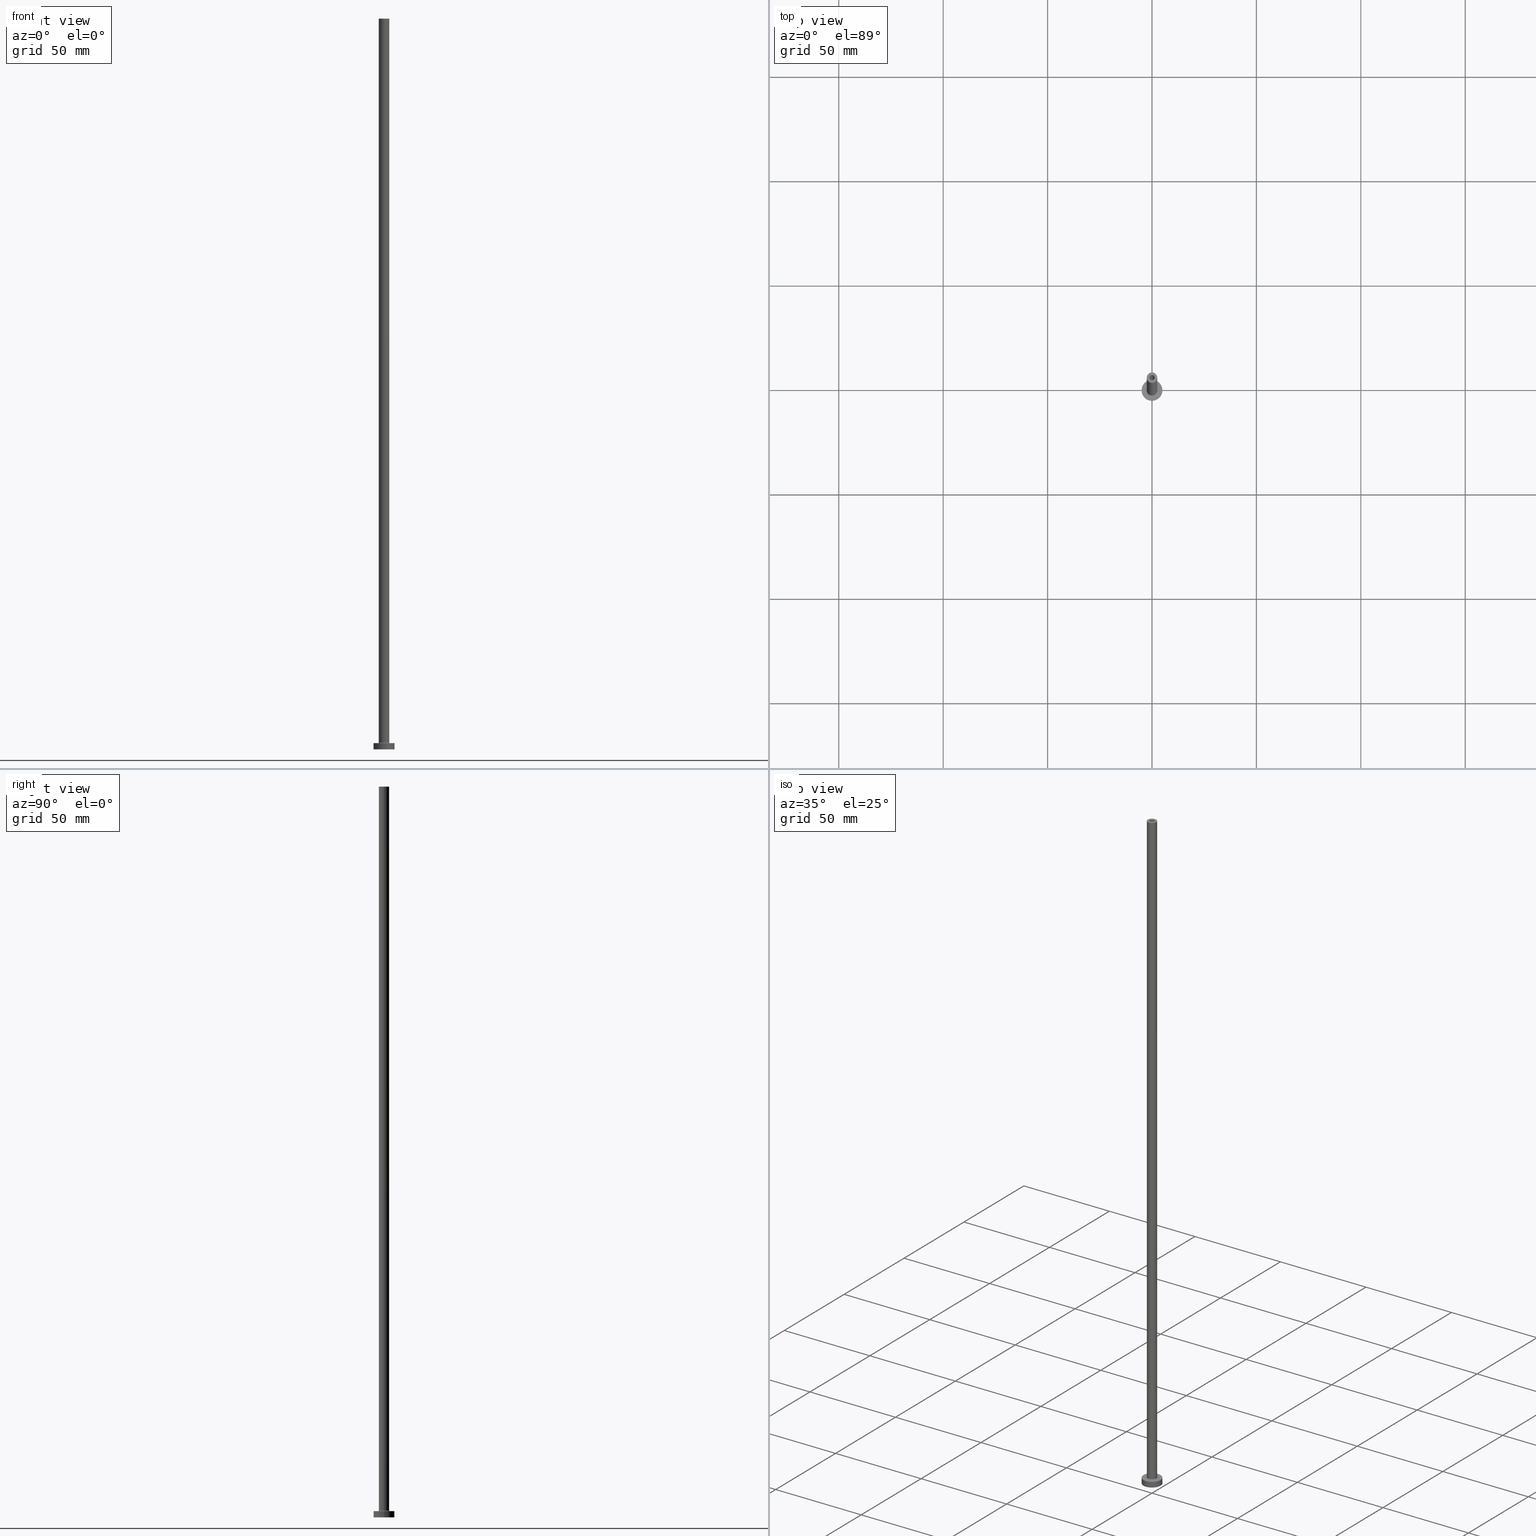
[diagram: canonical four-view strip — front | top / right | iso, engineering-drawing reading convention]
A machine part, canonical four-view strip (front | top / right | iso — engineering-drawing reading convention). The complete STEP part file that produces these views, byte-faithful:
ISO-10303-21;
HEADER;
FILE_DESCRIPTION (( 'STEP AP203' ),
    '1' );
FILE_NAME ('4200.STEP',
    '2023-02-13T18:04:15',
    ( '' ),
    ( '' ),
    'SwSTEP 2.0',
    'SolidWorks 2019',
    '' );
FILE_SCHEMA (( 'CONFIG_CONTROL_DESIGN' ));
ENDSEC;

DATA;
#1 = DIRECTION ( 'NONE',  ( 1.000000000000000000, 0.000000000000000000, 0.000000000000000000 ) ) ;
#2 = CYLINDRICAL_SURFACE ( 'NONE', #210, 1.250000000000000000 ) ;
#3 = LINE ( 'NONE', #32, #165 ) ;
#4 = CARTESIAN_POINT ( 'NONE',  ( 0.000000000000000000, 0.000000000000000000, 3.000000000000000000 ) ) ;
#5 = DIRECTION ( 'NONE',  ( 1.224646799147353207E-16, 1.000000000000000000, -0.000000000000000000 ) ) ;
#6 = AXIS2_PLACEMENT_3D ( 'NONE', #428, #432, #65 ) ;
#7 = CARTESIAN_POINT ( 'NONE',  ( 0.000000000000000000, 0.000000000000000000, 3.000000000000000000 ) ) ;
#8 = EDGE_LOOP ( 'NONE', ( #381, #57, #388, #373 ) ) ;
#9 = DIRECTION ( 'NONE',  ( 1.000000000000000000, 0.000000000000000000, 0.000000000000000000 ) ) ;
#10 = ORIENTED_EDGE ( 'NONE', *, *, #284, .F. ) ;
#11 = VECTOR ( 'NONE', #61, 1000.000000000000000 ) ;
#12 = APPROVAL_DATE_TIME ( #186, #104 ) ;
#13 = FACE_OUTER_BOUND ( 'NONE', #300, .T. ) ;
#14 = ORIENTED_EDGE ( 'NONE', *, *, #297, .F. ) ;
#15 = DIRECTION ( 'NONE',  ( 0.000000000000000000, 0.000000000000000000, 1.000000000000000000 ) ) ;
#16 = AXIS2_PLACEMENT_3D ( 'NONE', #207, #60, #168 ) ;
#17 = ORGANIZATION ( 'NEUR�EN�', 'NEUR�EN�', '' ) ;
#18 = VERTEX_POINT ( 'NONE', #311 ) ;
#19 = CALENDAR_DATE ( 2023, 13, 2 ) ;
#20 = DIRECTION ( 'NONE',  ( 0.000000000000000000, 0.000000000000000000, 1.000000000000000000 ) ) ;
#21 = VERTEX_POINT ( 'NONE', #353 ) ;
#22 = DATE_TIME_ROLE ( 'creation_date' ) ;
#23 = ADVANCED_FACE ( 'NONE', ( #164 ), #27, .F. ) ;
#24 = LINE ( 'NONE', #30, #192 ) ;
#25 = CARTESIAN_POINT ( 'NONE',  ( 0.000000000000000000, 0.000000000000000000, 3.300000000000025135 ) ) ;
#26 = AXIS2_PLACEMENT_3D ( 'NONE', #107, #326, #38 ) ;
#27 = CYLINDRICAL_SURFACE ( 'NONE', #173, 1.399999999999999911 ) ;
#28 = CARTESIAN_POINT ( 'NONE',  ( -5.000000000000000000, 0.000000000000000000, 3.000000000000000000 ) ) ;
#29 = EDGE_CURVE ( 'NONE', #18, #157, #248, .T. ) ;
#30 = CARTESIAN_POINT ( 'NONE',  ( -1.399999999999999911, 0.000000000000000000, 318.9597979746445731 ) ) ;
#31 = AXIS2_PLACEMENT_3D ( 'NONE', #399, #431, #328 ) ;
#32 = CARTESIAN_POINT ( 'NONE',  ( -1.250000000000000000, 0.000000000000000000, 350.0000000000000000 ) ) ;
#33 = DIRECTION ( 'NONE',  ( -1.000000000000000000, 0.000000000000000000, 0.000000000000000000 ) ) ;
#34 = CC_DESIGN_PERSON_AND_ORGANIZATION_ASSIGNMENT ( #59, #235, ( #54 ) ) ;
#35 = APPLICATION_CONTEXT ( 'configuration controlled 3d designs of mechanical parts and assemblies' ) ;
#36 = DIRECTION ( 'NONE',  ( -1.000000000000000000, 0.000000000000000000, 0.000000000000000000 ) ) ;
#37 = VECTOR ( 'NONE', #365, 1000.000000000000000 ) ;
#38 = DIRECTION ( 'NONE',  ( 1.000000000000000000, 0.000000000000000000, 0.000000000000000000 ) ) ;
#39 = EDGE_LOOP ( 'NONE', ( #53, #271, #438, #386 ) ) ;
#40 = CARTESIAN_POINT ( 'NONE',  ( 0.000000000000000000, 0.000000000000000000, 314.9999999999999432 ) ) ;
#41 = CC_DESIGN_PERSON_AND_ORGANIZATION_ASSIGNMENT ( #276, #389, ( #288 ) ) ;
#42 = CARTESIAN_POINT ( 'NONE',  ( 0.000000000000000000, 0.000000000000000000, 0.000000000000000000 ) ) ;
#43 = ORIENTED_EDGE ( 'NONE', *, *, #199, .F. ) ;
#44 = CIRCLE ( 'NONE', #66, 2.799999999999999822 ) ;
#45 = ORIENTED_EDGE ( 'NONE', *, *, #415, .T. ) ;
#46 = CARTESIAN_POINT ( 'NONE',  ( 0.000000000000000000, 0.000000000000000000, 350.0000000000000000 ) ) ;
#47 = ORIENTED_EDGE ( 'NONE', *, *, #324, .T. ) ;
#48 = COORDINATED_UNIVERSAL_TIME_OFFSET ( 1, 0, .AHEAD. ) ;
#49 = CARTESIAN_POINT ( 'NONE',  ( 5.000000000000000000, 6.123233995736766282E-16, 3.000000000000000000 ) ) ;
#50 = VERTEX_POINT ( 'NONE', #460 ) ;
#51 = DIRECTION ( 'NONE',  ( -1.000000000000000000, 0.000000000000000000, 0.000000000000000000 ) ) ;
#52 = CIRCLE ( 'NONE', #422, 2.500000000000000000 ) ;
#53 = ORIENTED_EDGE ( 'NONE', *, *, #284, .T. ) ;
#54 = PRODUCT ( '4200', '4200', '', ( #238 ) ) ;
#55 = EDGE_CURVE ( 'NONE', #159, #229, #355, .T. ) ;
#56 = CALENDAR_DATE ( 2023, 13, 2 ) ;
#57 = ORIENTED_EDGE ( 'NONE', *, *, #55, .T. ) ;
#58 = EDGE_LOOP ( 'NONE', ( #117, #197 ) ) ;
#59 = PERSON_AND_ORGANIZATION ( #211, #17 ) ;
#60 = DIRECTION ( 'NONE',  ( -0.000000000000000000, -0.000000000000000000, -1.000000000000000000 ) ) ;
#61 = DIRECTION ( 'NONE',  ( -0.000000000000000000, -0.000000000000000000, -1.000000000000000000 ) ) ;
#62 = ADVANCED_FACE ( 'NONE', ( #134 ), #205, .F. ) ;
#63 = EDGE_LOOP ( 'NONE', ( #162, #281, #85, #443 ) ) ;
#64 = DIRECTION ( 'NONE',  ( 0.000000000000000000, 0.000000000000000000, -1.000000000000000000 ) ) ;
#65 = DIRECTION ( 'NONE',  ( 1.000000000000000000, 0.000000000000000000, 0.000000000000000000 ) ) ;
#66 = AXIS2_PLACEMENT_3D ( 'NONE', #411, #335, #223 ) ;
#67 = LOCAL_TIME ( 19, 4, 15.00000000000000000, #384 ) ;
#68 = EDGE_CURVE ( 'NONE', #408, #456, #178, .T. ) ;
#69 = DIRECTION ( 'NONE',  ( -0.000000000000000000, -0.000000000000000000, -1.000000000000000000 ) ) ;
#70 = VECTOR ( 'NONE', #241, 1000.000000000000000 ) ;
#71 = DIRECTION ( 'NONE',  ( 0.000000000000000000, 0.000000000000000000, 1.000000000000000000 ) ) ;
#72 = CIRCLE ( 'NONE', #458, 1.399999999999999911 ) ;
#73 = CC_DESIGN_APPROVAL ( #104, ( #140 ) ) ;
#74 = DIRECTION ( 'NONE',  ( -1.000000000000000000, 0.000000000000000000, 0.000000000000000000 ) ) ;
#75 = CC_DESIGN_PERSON_AND_ORGANIZATION_ASSIGNMENT ( #231, #163, ( #292 ) ) ;
#76 =( LENGTH_UNIT ( ) NAMED_UNIT ( * ) SI_UNIT ( .MILLI., .METRE. ) );
#77 = CARTESIAN_POINT ( 'NONE',  ( -2.500000000000000000, 0.000000000000000000, 350.0000000000000000 ) ) ;
#78 = ORIENTED_EDGE ( 'NONE', *, *, #444, .F. ) ;
#79 = APPROVAL_ROLE ( '' ) ;
#80 = AXIS2_PLACEMENT_3D ( 'NONE', #290, #5, #255 ) ;
#81 = FACE_BOUND ( 'NONE', #393, .T. ) ;
#82 = VERTEX_POINT ( 'NONE', #167 ) ;
#83 = PERSON_AND_ORGANIZATION ( #211, #17 ) ;
#84 = CARTESIAN_POINT ( 'NONE',  ( -2.799999999999999822, 3.429011037612589276E-16, 3.000000000000012434 ) ) ;
#85 = ORIENTED_EDGE ( 'NONE', *, *, #142, .T. ) ;
#86 = AXIS2_PLACEMENT_3D ( 'NONE', #320, #286, #166 ) ;
#87 = APPROVAL_DATE_TIME ( #183, #425 ) ;
#88 = DIRECTION ( 'NONE',  ( -0.000000000000000000, -0.000000000000000000, -1.000000000000000000 ) ) ;
#89 = VERTEX_POINT ( 'NONE', #278 ) ;
#90 = PERSON_AND_ORGANIZATION ( #211, #17 ) ;
#91 = VECTOR ( 'NONE', #380, 1000.000000000000000 ) ;
#92 = VERTEX_POINT ( 'NONE', #351 ) ;
#93 = CC_DESIGN_PERSON_AND_ORGANIZATION_ASSIGNMENT ( #410, #370, ( #140 ) ) ;
#94 =( NAMED_UNIT ( * ) SI_UNIT ( $, .STERADIAN. ) SOLID_ANGLE_UNIT ( ) );
#95 = CYLINDRICAL_SURFACE ( 'NONE', #321, 5.000000000000000000 ) ;
#96 = CARTESIAN_POINT ( 'NONE',  ( 0.000000000000000000, 0.000000000000000000, 0.000000000000000000 ) ) ;
#97 = CARTESIAN_POINT ( 'NONE',  ( 0.000000000000000000, 0.000000000000000000, 3.300000000000025135 ) ) ;
#98 = EDGE_CURVE ( 'NONE', #414, #342, #129, .T. ) ;
#99 = LINE ( 'NONE', #203, #11 ) ;
#100 = ORIENTED_EDGE ( 'NONE', *, *, #436, .T. ) ;
#101 = DIRECTION ( 'NONE',  ( 0.000000000000000000, -1.000000000000000000, 0.000000000000000000 ) ) ;
#102 = CLOSED_SHELL ( 'NONE', ( #319, #23, #62, #191, #180, #230, #371, #330, #368, #452, #430, #459, #402, #247 ) ) ;
#103 = DIRECTION ( 'NONE',  ( 0.000000000000000000, 0.000000000000000000, 1.000000000000000000 ) ) ;
#104 = APPROVAL ( #379, 'NEUR�EN�' ) ;
#105 = CARTESIAN_POINT ( 'NONE',  ( 0.000000000000000000, 0.000000000000000000, 3.000000000000000000 ) ) ;
#106 = AXIS2_PLACEMENT_3D ( 'NONE', #440, #181, #116 ) ;
#107 = CARTESIAN_POINT ( 'NONE',  ( 0.000000000000000000, 0.000000000000000000, 3.300000000000025135 ) ) ;
#108 = FACE_OUTER_BOUND ( 'NONE', #39, .T. ) ;
#109 = CARTESIAN_POINT ( 'NONE',  ( 0.000000000000000000, 0.000000000000000000, 350.0000000000000000 ) ) ;
#110 = EDGE_CURVE ( 'NONE', #50, #418, #357, .T. ) ;
#111 = ORIENTED_EDGE ( 'NONE', *, *, #29, .F. ) ;
#112 = DIRECTION ( 'NONE',  ( 1.000000000000000000, 0.000000000000000000, 0.000000000000000000 ) ) ;
#113 = CARTESIAN_POINT ( 'NONE',  ( 1.250000000000000000, 1.530808498934191571E-16, 350.0000000000000000 ) ) ;
#114 = ORIENTED_EDGE ( 'NONE', *, *, #136, .F. ) ;
#115 = EDGE_CURVE ( 'NONE', #18, #21, #259, .T. ) ;
#116 = DIRECTION ( 'NONE',  ( 1.000000000000000000, 0.000000000000000000, 0.000000000000000000 ) ) ;
#117 = ORIENTED_EDGE ( 'NONE', *, *, #362, .F. ) ;
#118 = AXIS2_PLACEMENT_3D ( 'NONE', #260, #88, #51 ) ;
#119 = PLANE ( 'NONE',  #433 ) ;
#120 = APPROVAL_PERSON_ORGANIZATION ( #201, #337, #270 ) ;
#121 = EDGE_LOOP ( 'NONE', ( #10, #441 ) ) ;
#122 = DATE_TIME_ROLE ( 'classification_date' ) ;
#123 = DIRECTION ( 'NONE',  ( 0.000000000000000000, 0.000000000000000000, 1.000000000000000000 ) ) ;
#124 = ORIENTED_EDGE ( 'NONE', *, *, #297, .T. ) ;
#125 = COORDINATED_UNIVERSAL_TIME_OFFSET ( 1, 0, .AHEAD. ) ;
#126 = EDGE_LOOP ( 'NONE', ( #43, #150 ) ) ;
#127 = EDGE_CURVE ( 'NONE', #418, #157, #99, .T. ) ;
#128 = CIRCLE ( 'NONE', #26, 2.500000000000000000 ) ;
#129 = LINE ( 'NONE', #454, #213 ) ;
#130 = APPROVAL_DATE_TIME ( #453, #337 ) ;
#131 = CARTESIAN_POINT ( 'NONE',  ( 0.000000000000000000, 0.000000000000000000, 318.9597979746445731 ) ) ;
#132 = ORIENTED_EDGE ( 'NONE', *, *, #265, .F. ) ;
#133 = ORIENTED_EDGE ( 'NONE', *, *, #98, .F. ) ;
#134 = FACE_OUTER_BOUND ( 'NONE', #295, .T. ) ;
#135 = AXIS2_PLACEMENT_3D ( 'NONE', #40, #172, #216 ) ;
#136 = EDGE_CURVE ( 'NONE', #378, #147, #277, .T. ) ;
#137 = DIRECTION ( 'NONE',  ( 0.000000000000000000, 0.000000000000000000, -1.000000000000000000 ) ) ;
#138 = CARTESIAN_POINT ( 'NONE',  ( 0.000000000000000000, 0.000000000000000000, 0.000000000000000000 ) ) ;
#139 = CIRCLE ( 'NONE', #382, 5.000000000000000000 ) ;
#140 = SECURITY_CLASSIFICATION ( '', '', #301 ) ;
#141 = PLANE ( 'NONE',  #234 ) ;
#142 = EDGE_CURVE ( 'NONE', #147, #456, #360, .T. ) ;
#143 = AXIS2_PLACEMENT_3D ( 'NONE', #394, #103, #392 ) ;
#144 = DIRECTION ( 'NONE',  ( -1.000000000000000000, 0.000000000000000000, 0.000000000000000000 ) ) ;
#145 = ORIENTED_EDGE ( 'NONE', *, *, #349, .T. ) ;
#146 = CARTESIAN_POINT ( 'NONE',  ( 0.000000000000000000, 0.000000000000000000, 350.0000000000000000 ) ) ;
#147 = VERTEX_POINT ( 'NONE', #28 ) ;
#148 = CC_DESIGN_APPROVAL ( #337, ( #288 ) ) ;
#149 = CARTESIAN_POINT ( 'NONE',  ( 0.000000000000000000, 0.000000000000000000, 350.0000000000000000 ) ) ;
#150 = ORIENTED_EDGE ( 'NONE', *, *, #221, .F. ) ;
#151 = PRODUCT_RELATED_PRODUCT_CATEGORY ( 'detail', '', ( #54 ) ) ;
#152 = SHAPE_DEFINITION_REPRESENTATION ( #448, #404 ) ;
#153 = CYLINDRICAL_SURFACE ( 'NONE', #118, 2.500000000000000000 ) ;
#154 = EDGE_LOOP ( 'NONE', ( #285, #111, #267, #218 ) ) ;
#155 = CALENDAR_DATE ( 2023, 13, 2 ) ;
#156 = DIRECTION ( 'NONE',  ( -1.000000000000000000, 0.000000000000000000, 0.000000000000000000 ) ) ;
#157 = VERTEX_POINT ( 'NONE', #246 ) ;
#158 = FACE_OUTER_BOUND ( 'NONE', #405, .T. ) ;
#159 = VERTEX_POINT ( 'NONE', #390 ) ;
#160 = CC_DESIGN_DATE_AND_TIME_ASSIGNMENT ( #196, #22, ( #288 ) ) ;
#161 = DIRECTION ( 'NONE',  ( 1.000000000000000000, 0.000000000000000000, -0.000000000000000000 ) ) ;
#162 = ORIENTED_EDGE ( 'NONE', *, *, #415, .F. ) ;
#163 = PERSON_AND_ORGANIZATION_ROLE ( 'creator' ) ;
#164 = FACE_OUTER_BOUND ( 'NONE', #8, .T. ) ;
#165 = VECTOR ( 'NONE', #426, 1000.000000000000000 ) ;
#166 = DIRECTION ( 'NONE',  ( 1.000000000000000000, 0.000000000000000000, 0.000000000000000000 ) ) ;
#167 = CARTESIAN_POINT ( 'NONE',  ( -1.250000000000000000, 0.000000000000000000, 350.0000000000000000 ) ) ;
#168 = DIRECTION ( 'NONE',  ( 1.000000000000000000, 0.000000000000000000, 0.000000000000000000 ) ) ;
#169 = DIRECTION ( 'NONE',  ( 0.000000000000000000, 0.000000000000000000, -1.000000000000000000 ) ) ;
#170 = AXIS2_PLACEMENT_3D ( 'NONE', #445, #189, #346 ) ;
#171 = EDGE_CURVE ( 'NONE', #21, #420, #316, .T. ) ;
#172 = DIRECTION ( 'NONE',  ( 0.000000000000000000, 0.000000000000000000, 1.000000000000000000 ) ) ;
#173 = AXIS2_PLACEMENT_3D ( 'NONE', #131, #200, #244 ) ;
#174 = CARTESIAN_POINT ( 'NONE',  ( 0.000000000000000000, 0.000000000000000000, 0.000000000000000000 ) ) ;
#175 = DIRECTION ( 'NONE',  ( 1.000000000000000000, 0.000000000000000000, 0.000000000000000000 ) ) ;
#176 = EDGE_CURVE ( 'NONE', #89, #457, #24, .T. ) ;
#177 = CYLINDRICAL_SURFACE ( 'NONE', #31, 2.500000000000000000 ) ;
#178 = CIRCLE ( 'NONE', #439, 5.000000000000000000 ) ;
#179 = CARTESIAN_POINT ( 'NONE',  ( 0.000000000000000000, 0.000000000000000000, 350.0000000000000000 ) ) ;
#180 = ADVANCED_FACE ( 'NONE', ( #424 ), #95, .T. ) ;
#181 = DIRECTION ( 'NONE',  ( 0.000000000000000000, 0.000000000000000000, 1.000000000000000000 ) ) ;
#182 = ORIENTED_EDGE ( 'NONE', *, *, #142, .F. ) ;
#183 = DATE_AND_TIME ( #348, #67 ) ;
#184 = LINE ( 'NONE', #266, #91 ) ;
#185 = ORIENTED_EDGE ( 'NONE', *, *, #258, .T. ) ;
#186 = DATE_AND_TIME ( #19, #409 ) ;
#187 = DIRECTION ( 'NONE',  ( 0.000000000000000000, 0.000000000000000000, 1.000000000000000000 ) ) ;
#188 = ORIENTED_EDGE ( 'NONE', *, *, #324, .F. ) ;
#189 = DIRECTION ( 'NONE',  ( 0.000000000000000000, 0.000000000000000000, 1.000000000000000000 ) ) ;
#190 = ORIENTED_EDGE ( 'NONE', *, *, #419, .T. ) ;
#191 = ADVANCED_FACE ( 'NONE', ( #369 ), #177, .T. ) ;
#192 = VECTOR ( 'NONE', #169, 1000.000000000000000 ) ;
#193 = APPROVAL_PERSON_ORGANIZATION ( #345, #425, #79 ) ;
#194 = CARTESIAN_POINT ( 'NONE',  ( 0.000000000000000000, 0.000000000000000000, 314.9999999999999432 ) ) ;
#195 = EDGE_LOOP ( 'NONE', ( #375, #190 ) ) ;
#196 = DATE_AND_TIME ( #416, #363 ) ;
#197 = ORIENTED_EDGE ( 'NONE', *, *, #68, .F. ) ;
#198 = APPLICATION_PROTOCOL_DEFINITION ( 'international standard', 'config_control_design', 1994, #279 ) ;
#199 = EDGE_CURVE ( 'NONE', #89, #159, #242, .T. ) ;
#200 = DIRECTION ( 'NONE',  ( 0.000000000000000000, 0.000000000000000000, -1.000000000000000000 ) ) ;
#201 = PERSON_AND_ORGANIZATION ( #211, #17 ) ;
#202 = AXIS2_PLACEMENT_3D ( 'NONE', #46, #187, #161 ) ;
#203 = CARTESIAN_POINT ( 'NONE',  ( -2.500000000000000000, 0.000000000000000000, 350.0000000000000000 ) ) ;
#204 = DIRECTION ( 'NONE',  ( 0.000000000000000000, 0.000000000000000000, 1.000000000000000000 ) ) ;
#205 = TOROIDAL_SURFACE ( 'NONE', #253, 2.799999999999999822, 0.2999999999999999889 ) ;
#206 = ORIENTED_EDGE ( 'NONE', *, *, #208, .F. ) ;
#207 = CARTESIAN_POINT ( 'NONE',  ( 0.000000000000000000, 0.000000000000000000, 3.000000000000000000 ) ) ;
#208 = EDGE_CURVE ( 'NONE', #418, #50, #52, .T. ) ;
#209 = DIRECTION ( 'NONE',  ( 0.000000000000000000, 0.000000000000000000, 1.000000000000000000 ) ) ;
#210 = AXIS2_PLACEMENT_3D ( 'NONE', #179, #294, #144 ) ;
#211 = PERSON ( 'NEUR�EN�', 'NEUR�EN�', 'NEUR�EN�', ('NEUR�EN�'), ('NEUR�EN�'), ('NEUR�EN�') ) ;
#212 = FACE_OUTER_BOUND ( 'NONE', #359, .T. ) ;
#213 = VECTOR ( 'NONE', #64, 1000.000000000000000 ) ;
#214 = CARTESIAN_POINT ( 'NONE',  ( 0.000000000000000000, 0.000000000000000000, 314.9999999999999432 ) ) ;
#215 = EDGE_CURVE ( 'NONE', #147, #378, #312, .T. ) ;
#216 = DIRECTION ( 'NONE',  ( 1.000000000000000000, 0.000000000000000000, 0.000000000000000000 ) ) ;
#217 = AXIS2_PLACEMENT_3D ( 'NONE', #105, #254, #400 ) ;
#218 = ORIENTED_EDGE ( 'NONE', *, *, #419, .F. ) ;
#219 = AXIS2_PLACEMENT_3D ( 'NONE', #96, #314, #350 ) ;
#220 = CYLINDRICAL_SURFACE ( 'NONE', #361, 5.000000000000000000 ) ;
#221 = EDGE_CURVE ( 'NONE', #159, #89, #343, .T. ) ;
#222 = VECTOR ( 'NONE', #249, 1000.000000000000000 ) ;
#223 = DIRECTION ( 'NONE',  ( 1.000000000000000000, 0.000000000000000000, 0.000000000000000000 ) ) ;
#224 = ORIENTED_EDGE ( 'NONE', *, *, #444, .T. ) ;
#225 = CIRCLE ( 'NONE', #333, 1.250000000000000000 ) ;
#226 = FACE_OUTER_BOUND ( 'NONE', #303, .T. ) ;
#227 = ORIENTED_EDGE ( 'NONE', *, *, #136, .T. ) ;
#228 = DIRECTION ( 'NONE',  ( 0.000000000000000000, 0.000000000000000000, 1.000000000000000000 ) ) ;
#229 = VERTEX_POINT ( 'NONE', #434 ) ;
#230 = ADVANCED_FACE ( 'NONE', ( #367 ), #220, .T. ) ;
#231 = PERSON_AND_ORGANIZATION ( #211, #17 ) ;
#232 = FACE_OUTER_BOUND ( 'NONE', #126, .T. ) ;
#233 = ORIENTED_EDGE ( 'NONE', *, *, #356, .F. ) ;
#234 = AXIS2_PLACEMENT_3D ( 'NONE', #395, #209, #364 ) ;
#235 = PERSON_AND_ORGANIZATION_ROLE ( 'design_owner' ) ;
#236 = EDGE_LOOP ( 'NONE', ( #14, #132 ) ) ;
#237 = CC_DESIGN_PERSON_AND_ORGANIZATION_ASSIGNMENT ( #83, #376, ( #292 ) ) ;
#238 = MECHANICAL_CONTEXT ( 'NONE', #35, 'mechanical' ) ;
#239 = CARTESIAN_POINT ( 'NONE',  ( 0.000000000000000000, 0.000000000000000000, 3.000000000000000000 ) ) ;
#240 = COORDINATED_UNIVERSAL_TIME_OFFSET ( 1, 0, .AHEAD. ) ;
#241 = DIRECTION ( 'NONE',  ( -0.000000000000000000, -0.000000000000000000, -1.000000000000000000 ) ) ;
#242 = CIRCLE ( 'NONE', #298, 1.399999999999999911 ) ;
#243 = CC_DESIGN_APPROVAL ( #425, ( #292 ) ) ;
#244 = DIRECTION ( 'NONE',  ( -1.000000000000000000, 0.000000000000000000, 0.000000000000000000 ) ) ;
#245 = ORIENTED_EDGE ( 'NONE', *, *, #110, .F. ) ;
#246 = CARTESIAN_POINT ( 'NONE',  ( -2.500000000000000000, 0.000000000000000000, 3.300000000000025135 ) ) ;
#247 = ADVANCED_FACE ( 'NONE', ( #212 ), #2, .F. ) ;
#248 = CIRCLE ( 'NONE', #461, 2.500000000000000000 ) ;
#249 = DIRECTION ( 'NONE',  ( 0.000000000000000000, 0.000000000000000000, -1.000000000000000000 ) ) ;
#250 = LINE ( 'NONE', #398, #37 ) ;
#251 = CIRCLE ( 'NONE', #264, 1.399999999999999911 ) ;
#252 = CARTESIAN_POINT ( 'NONE',  ( 1.250000000000000000, 1.530808498934191571E-16, 314.9999999999999432 ) ) ;
#253 = AXIS2_PLACEMENT_3D ( 'NONE', #97, #204, #317 ) ;
#254 = DIRECTION ( 'NONE',  ( 0.000000000000000000, 0.000000000000000000, 1.000000000000000000 ) ) ;
#255 = DIRECTION ( 'NONE',  ( -1.000000000000000000, 1.224646799147353207E-16, 0.000000000000000000 ) ) ;
#256 = CIRCLE ( 'NONE', #170, 1.250000000000000000 ) ;
#257 = CYLINDRICAL_SURFACE ( 'NONE', #327, 1.399999999999999911 ) ;
#258 = EDGE_CURVE ( 'NONE', #157, #420, #282, .T. ) ;
#259 = CIRCLE ( 'NONE', #387, 0.2999999999999999334 ) ;
#260 = CARTESIAN_POINT ( 'NONE',  ( 0.000000000000000000, 0.000000000000000000, 350.0000000000000000 ) ) ;
#261 = ORIENTED_EDGE ( 'NONE', *, *, #383, .T. ) ;
#262 = FACE_BOUND ( 'NONE', #121, .T. ) ;
#263 = ORIENTED_EDGE ( 'NONE', *, *, #55, .F. ) ;
#264 = AXIS2_PLACEMENT_3D ( 'NONE', #138, #69, #175 ) ;
#265 = EDGE_CURVE ( 'NONE', #229, #457, #72, .T. ) ;
#266 = CARTESIAN_POINT ( 'NONE',  ( 5.000000000000000000, 6.123233995736766282E-16, 3.000000000000000000 ) ) ;
#267 = ORIENTED_EDGE ( 'NONE', *, *, #115, .T. ) ;
#268 = DIRECTION ( 'NONE',  ( 1.000000000000000000, 0.000000000000000000, -0.000000000000000000 ) ) ;
#269 = ORIENTED_EDGE ( 'NONE', *, *, #171, .F. ) ;
#270 = APPROVAL_ROLE ( '' ) ;
#271 = ORIENTED_EDGE ( 'NONE', *, *, #98, .T. ) ;
#272 = CC_DESIGN_DATE_AND_TIME_ASSIGNMENT ( #338, #122, ( #140 ) ) ;
#273 = AXIS2_PLACEMENT_3D ( 'NONE', #109, #137, #74 ) ;
#274 = COORDINATED_UNIVERSAL_TIME_OFFSET ( 1, 0, .AHEAD. ) ;
#275 = CARTESIAN_POINT ( 'NONE',  ( 1.399999999999999911, 1.714505518806294391E-16, 318.9597979746445731 ) ) ;
#276 = PERSON_AND_ORGANIZATION ( #211, #17 ) ;
#277 = CIRCLE ( 'NONE', #143, 5.000000000000000000 ) ;
#278 = CARTESIAN_POINT ( 'NONE',  ( -1.399999999999999911, 0.000000000000000000, 314.9999999999999432 ) ) ;
#279 = APPLICATION_CONTEXT ( 'configuration controlled 3d designs of mechanical parts and assemblies' ) ;
#280 = DIRECTION ( 'NONE',  ( 1.000000000000000000, 0.000000000000000000, 0.000000000000000000 ) ) ;
#281 = ORIENTED_EDGE ( 'NONE', *, *, #215, .F. ) ;
#282 = CIRCLE ( 'NONE', #80, 0.2999999999999999334 ) ;
#283 = APPROVAL_PERSON_ORGANIZATION ( #90, #104, #406 ) ;
#284 = EDGE_CURVE ( 'NONE', #82, #414, #451, .T. ) ;
#285 = ORIENTED_EDGE ( 'NONE', *, *, #258, .F. ) ;
#286 = DIRECTION ( 'NONE',  ( 0.000000000000000000, 0.000000000000000000, 1.000000000000000000 ) ) ;
#287 = FACE_BOUND ( 'NONE', #236, .T. ) ;
#288 = PRODUCT_DEFINITION ( 'NEZN�M�', '', #292, #429 ) ;
#289 = UNCERTAINTY_MEASURE_WITH_UNIT (LENGTH_MEASURE( 1.000000000000000082E-05 ), #76, 'distance_accuracy_value', 'NONE');
#290 = CARTESIAN_POINT ( 'NONE',  ( -2.799999999999999822, 3.429011037612588783E-16, 3.300000000000025135 ) ) ;
#291 = TOROIDAL_SURFACE ( 'NONE', #427, 2.799999999999999822, 0.2999999999999999889 ) ;
#292 = PRODUCT_DEFINITION_FORMATION_WITH_SPECIFIED_SOURCE ( 'LIBOVOLN�', '', #54, .NOT_KNOWN. ) ;
#293 = DIRECTION ( 'NONE',  ( 0.000000000000000000, 0.000000000000000000, 1.000000000000000000 ) ) ;
#294 = DIRECTION ( 'NONE',  ( 0.000000000000000000, 0.000000000000000000, -1.000000000000000000 ) ) ;
#295 = EDGE_LOOP ( 'NONE', ( #188, #185, #269, #435 ) ) ;
#296 = DIRECTION ( 'NONE',  ( -0.000000000000000000, -0.000000000000000000, -1.000000000000000000 ) ) ;
#297 = EDGE_CURVE ( 'NONE', #457, #229, #251, .T. ) ;
#298 = AXIS2_PLACEMENT_3D ( 'NONE', #214, #293, #112 ) ;
#299 = DIRECTION ( 'NONE',  ( 0.000000000000000000, 0.000000000000000000, -1.000000000000000000 ) ) ;
#300 = EDGE_LOOP ( 'NONE', ( #263, #308, #412, #124 ) ) ;
#301 = SECURITY_CLASSIFICATION_LEVEL ( 'unclassified' ) ;
#302 = DIRECTION ( 'NONE',  ( 1.000000000000000000, 0.000000000000000000, 0.000000000000000000 ) ) ;
#303 = EDGE_LOOP ( 'NONE', ( #340, #329 ) ) ;
#304 = CARTESIAN_POINT ( 'NONE',  ( 0.000000000000000000, 0.000000000000000000, 318.9597979746445731 ) ) ;
#305 = EDGE_LOOP ( 'NONE', ( #245, #336, #318, #347 ) ) ;
#306 =( GEOMETRIC_REPRESENTATION_CONTEXT ( 3 ) GLOBAL_UNCERTAINTY_ASSIGNED_CONTEXT ( ( #289 ) ) GLOBAL_UNIT_ASSIGNED_CONTEXT ( ( #76, #437, #94 ) ) REPRESENTATION_CONTEXT ( 'NONE', 'WORKASPACE' ) );
#307 = PLANE ( 'NONE',  #391 ) ;
#308 = ORIENTED_EDGE ( 'NONE', *, *, #221, .T. ) ;
#309 = FACE_BOUND ( 'NONE', #195, .T. ) ;
#310 = ORIENTED_EDGE ( 'NONE', *, *, #127, .T. ) ;
#311 = CARTESIAN_POINT ( 'NONE',  ( 2.500000000000000000, 3.061616997868383141E-16, 3.300000000000025135 ) ) ;
#312 = CIRCLE ( 'NONE', #217, 5.000000000000000000 ) ;
#313 = LOCAL_TIME ( 19, 4, 15.00000000000000000, #125 ) ;
#314 = DIRECTION ( 'NONE',  ( 0.000000000000000000, 0.000000000000000000, 1.000000000000000000 ) ) ;
#315 = DIRECTION ( 'NONE',  ( 0.000000000000000000, 0.000000000000000000, -1.000000000000000000 ) ) ;
#316 = CIRCLE ( 'NONE', #16, 2.799999999999999822 ) ;
#317 = DIRECTION ( 'NONE',  ( 1.000000000000000000, 0.000000000000000000, 0.000000000000000000 ) ) ;
#318 = ORIENTED_EDGE ( 'NONE', *, *, #29, .T. ) ;
#319 = ADVANCED_FACE ( 'NONE', ( #108 ), #323, .F. ) ;
#320 = CARTESIAN_POINT ( 'NONE',  ( 0.000000000000000000, 0.000000000000000000, 350.0000000000000000 ) ) ;
#321 = AXIS2_PLACEMENT_3D ( 'NONE', #239, #401, #33 ) ;
#322 = DIRECTION ( 'NONE',  ( 0.000000000000000000, 0.000000000000000000, 1.000000000000000000 ) ) ;
#323 = CYLINDRICAL_SURFACE ( 'NONE', #273, 1.250000000000000000 ) ;
#324 = EDGE_CURVE ( 'NONE', #157, #18, #128, .T. ) ;
#325 = DIRECTION ( 'NONE',  ( -0.000000000000000000, -0.000000000000000000, -1.000000000000000000 ) ) ;
#326 = DIRECTION ( 'NONE',  ( 0.000000000000000000, 0.000000000000000000, 1.000000000000000000 ) ) ;
#327 = AXIS2_PLACEMENT_3D ( 'NONE', #304, #299, #156 ) ;
#328 = DIRECTION ( 'NONE',  ( -1.000000000000000000, 0.000000000000000000, 0.000000000000000000 ) ) ;
#329 = ORIENTED_EDGE ( 'NONE', *, *, #110, .T. ) ;
#330 = ADVANCED_FACE ( 'NONE', ( #287, #331 ), #141, .F. ) ;
#331 = FACE_OUTER_BOUND ( 'NONE', #58, .T. ) ;
#332 = DIRECTION ( 'NONE',  ( 1.000000000000000000, 0.000000000000000000, 0.000000000000000000 ) ) ;
#333 = AXIS2_PLACEMENT_3D ( 'NONE', #149, #228, #9 ) ;
#334 = ORIENTED_EDGE ( 'NONE', *, *, #215, .T. ) ;
#335 = DIRECTION ( 'NONE',  ( -0.000000000000000000, -0.000000000000000000, -1.000000000000000000 ) ) ;
#336 = ORIENTED_EDGE ( 'NONE', *, *, #356, .T. ) ;
#337 = APPROVAL ( #385, 'NEUR�EN�' ) ;
#338 = DATE_AND_TIME ( #155, #313 ) ;
#339 = CARTESIAN_POINT ( 'NONE',  ( -1.399999999999999911, 0.000000000000000000, 0.000000000000000000 ) ) ;
#340 = ORIENTED_EDGE ( 'NONE', *, *, #208, .T. ) ;
#341 = DIRECTION ( 'NONE',  ( 0.000000000000000000, 0.000000000000000000, 1.000000000000000000 ) ) ;
#342 = VERTEX_POINT ( 'NONE', #252 ) ;
#343 = CIRCLE ( 'NONE', #135, 1.399999999999999911 ) ;
#344 = CC_DESIGN_SECURITY_CLASSIFICATION ( #140, ( #292 ) ) ;
#345 = PERSON_AND_ORGANIZATION ( #211, #17 ) ;
#346 = DIRECTION ( 'NONE',  ( 1.000000000000000000, 0.000000000000000000, 0.000000000000000000 ) ) ;
#347 = ORIENTED_EDGE ( 'NONE', *, *, #127, .F. ) ;
#348 = CALENDAR_DATE ( 2023, 13, 2 ) ;
#349 = EDGE_CURVE ( 'NONE', #82, #92, #3, .T. ) ;
#350 = DIRECTION ( 'NONE',  ( 1.000000000000000000, 0.000000000000000000, 0.000000000000000000 ) ) ;
#351 = CARTESIAN_POINT ( 'NONE',  ( -1.250000000000000000, 0.000000000000000000, 314.9999999999999432 ) ) ;
#352 = APPLICATION_PROTOCOL_DEFINITION ( 'international standard', 'config_control_design', 1994, #35 ) ;
#353 = CARTESIAN_POINT ( 'NONE',  ( 2.799999999999999822, 0.000000000000000000, 3.000000000000012434 ) ) ;
#354 = LOCAL_TIME ( 19, 4, 15.00000000000000000, #274 ) ;
#355 = LINE ( 'NONE', #275, #222 ) ;
#356 = EDGE_CURVE ( 'NONE', #50, #18, #250, .T. ) ;
#357 = CIRCLE ( 'NONE', #86, 2.500000000000000000 ) ;
#358 = CARTESIAN_POINT ( 'NONE',  ( 0.000000000000000000, 0.000000000000000000, 0.000000000000000000 ) ) ;
#359 = EDGE_LOOP ( 'NONE', ( #133, #100, #145, #78 ) ) ;
#360 = LINE ( 'NONE', #450, #70 ) ;
#361 = AXIS2_PLACEMENT_3D ( 'NONE', #4, #325, #36 ) ;
#362 = EDGE_CURVE ( 'NONE', #456, #408, #139, .T. ) ;
#363 = LOCAL_TIME ( 19, 4, 15.00000000000000000, #240 ) ;
#364 = DIRECTION ( 'NONE',  ( 1.000000000000000000, 0.000000000000000000, -0.000000000000000000 ) ) ;
#365 = DIRECTION ( 'NONE',  ( -0.000000000000000000, -0.000000000000000000, -1.000000000000000000 ) ) ;
#366 = DIRECTION ( 'NONE',  ( 1.000000000000000000, 0.000000000000000000, 0.000000000000000000 ) ) ;
#367 = FACE_OUTER_BOUND ( 'NONE', #63, .T. ) ;
#368 = ADVANCED_FACE ( 'NONE', ( #407 ), #153, .T. ) ;
#369 = FACE_OUTER_BOUND ( 'NONE', #305, .T. ) ;
#370 = PERSON_AND_ORGANIZATION_ROLE ( 'classification_officer' ) ;
#371 = ADVANCED_FACE ( 'NONE', ( #309, #158 ), #307, .T. ) ;
#372 = FACE_OUTER_BOUND ( 'NONE', #154, .T. ) ;
#373 = ORIENTED_EDGE ( 'NONE', *, *, #176, .F. ) ;
#374 = PLANE ( 'NONE',  #202 ) ;
#375 = ORIENTED_EDGE ( 'NONE', *, *, #171, .T. ) ;
#376 = PERSON_AND_ORGANIZATION_ROLE ( 'design_supplier' ) ;
#377 = CARTESIAN_POINT ( 'NONE',  ( -5.000000000000000000, 0.000000000000000000, 0.000000000000000000 ) ) ;
#378 = VERTEX_POINT ( 'NONE', #49 ) ;
#379 = APPROVAL_STATUS ( 'not_yet_approved' ) ;
#380 = DIRECTION ( 'NONE',  ( -0.000000000000000000, -0.000000000000000000, -1.000000000000000000 ) ) ;
#381 = ORIENTED_EDGE ( 'NONE', *, *, #199, .T. ) ;
#382 = AXIS2_PLACEMENT_3D ( 'NONE', #42, #15, #332 ) ;
#383 = EDGE_CURVE ( 'NONE', #92, #342, #256, .T. ) ;
#384 = COORDINATED_UNIVERSAL_TIME_OFFSET ( 1, 0, .AHEAD. ) ;
#385 = APPROVAL_STATUS ( 'not_yet_approved' ) ;
#386 = ORIENTED_EDGE ( 'NONE', *, *, #349, .F. ) ;
#387 = AXIS2_PLACEMENT_3D ( 'NONE', #421, #101, #315 ) ;
#388 = ORIENTED_EDGE ( 'NONE', *, *, #265, .T. ) ;
#389 = PERSON_AND_ORGANIZATION_ROLE ( 'creator' ) ;
#390 = CARTESIAN_POINT ( 'NONE',  ( 1.399999999999999911, 1.714505518806294391E-16, 314.9999999999999432 ) ) ;
#391 = AXIS2_PLACEMENT_3D ( 'NONE', #7, #341, #268 ) ;
#392 = DIRECTION ( 'NONE',  ( 1.000000000000000000, 0.000000000000000000, 0.000000000000000000 ) ) ;
#393 = EDGE_LOOP ( 'NONE', ( #261, #224 ) ) ;
#394 = CARTESIAN_POINT ( 'NONE',  ( 0.000000000000000000, 0.000000000000000000, 3.000000000000000000 ) ) ;
#395 = CARTESIAN_POINT ( 'NONE',  ( 0.000000000000000000, 0.000000000000000000, 0.000000000000000000 ) ) ;
#396 = MANIFOLD_SOLID_BREP ( 'Odebrat vysunut�m4', #102 ) ;
#397 = CIRCLE ( 'NONE', #106, 1.250000000000000000 ) ;
#398 = CARTESIAN_POINT ( 'NONE',  ( 2.500000000000000000, 3.061616997868383141E-16, 350.0000000000000000 ) ) ;
#399 = CARTESIAN_POINT ( 'NONE',  ( 0.000000000000000000, 0.000000000000000000, 350.0000000000000000 ) ) ;
#400 = DIRECTION ( 'NONE',  ( 1.000000000000000000, 0.000000000000000000, 0.000000000000000000 ) ) ;
#401 = DIRECTION ( 'NONE',  ( -0.000000000000000000, -0.000000000000000000, -1.000000000000000000 ) ) ;
#402 = ADVANCED_FACE ( 'NONE', ( #81, #232 ), #119, .F. ) ;
#403 = CARTESIAN_POINT ( 'NONE',  ( 5.000000000000000000, 6.123233995736766282E-16, 0.000000000000000000 ) ) ;
#404 = ADVANCED_BREP_SHAPE_REPRESENTATION ( '4200', ( #396, #219 ), #306 ) ;
#405 = EDGE_LOOP ( 'NONE', ( #334, #227 ) ) ;
#406 = APPROVAL_ROLE ( '' ) ;
#407 = FACE_OUTER_BOUND ( 'NONE', #449, .T. ) ;
#408 = VERTEX_POINT ( 'NONE', #403 ) ;
#409 = LOCAL_TIME ( 19, 4, 15.00000000000000000, #48 ) ;
#410 = PERSON_AND_ORGANIZATION ( #211, #17 ) ;
#411 = CARTESIAN_POINT ( 'NONE',  ( 0.000000000000000000, 0.000000000000000000, 3.000000000000000000 ) ) ;
#412 = ORIENTED_EDGE ( 'NONE', *, *, #176, .T. ) ;
#413 = CARTESIAN_POINT ( 'NONE',  ( 0.000000000000000000, 0.000000000000000000, 3.300000000000025135 ) ) ;
#414 = VERTEX_POINT ( 'NONE', #113 ) ;
#415 = EDGE_CURVE ( 'NONE', #378, #408, #184, .T. ) ;
#416 = CALENDAR_DATE ( 2023, 13, 2 ) ;
#417 = EDGE_LOOP ( 'NONE', ( #114, #45, #446, #182 ) ) ;
#418 = VERTEX_POINT ( 'NONE', #77 ) ;
#419 = EDGE_CURVE ( 'NONE', #420, #21, #44, .T. ) ;
#420 = VERTEX_POINT ( 'NONE', #84 ) ;
#421 = CARTESIAN_POINT ( 'NONE',  ( 2.799999999999999822, 0.000000000000000000, 3.300000000000025135 ) ) ;
#422 = AXIS2_PLACEMENT_3D ( 'NONE', #146, #71, #1 ) ;
#423 = DIRECTION ( 'NONE',  ( 1.000000000000000000, 0.000000000000000000, 0.000000000000000000 ) ) ;
#424 = FACE_OUTER_BOUND ( 'NONE', #417, .T. ) ;
#425 = APPROVAL ( #442, 'NEUR�EN�' ) ;
#426 = DIRECTION ( 'NONE',  ( 0.000000000000000000, 0.000000000000000000, -1.000000000000000000 ) ) ;
#427 = AXIS2_PLACEMENT_3D ( 'NONE', #413, #20, #302 ) ;
#428 = CARTESIAN_POINT ( 'NONE',  ( 0.000000000000000000, 0.000000000000000000, 350.0000000000000000 ) ) ;
#429 = DESIGN_CONTEXT ( 'detailed design', #279, 'design' ) ;
#430 = ADVANCED_FACE ( 'NONE', ( #372 ), #291, .F. ) ;
#431 = DIRECTION ( 'NONE',  ( -0.000000000000000000, -0.000000000000000000, -1.000000000000000000 ) ) ;
#432 = DIRECTION ( 'NONE',  ( 0.000000000000000000, 0.000000000000000000, 1.000000000000000000 ) ) ;
#433 = AXIS2_PLACEMENT_3D ( 'NONE', #194, #123, #447 ) ;
#434 = CARTESIAN_POINT ( 'NONE',  ( 1.399999999999999911, 1.714505518806294391E-16, 0.000000000000000000 ) ) ;
#435 = ORIENTED_EDGE ( 'NONE', *, *, #115, .F. ) ;
#436 = EDGE_CURVE ( 'NONE', #414, #82, #225, .T. ) ;
#437 =( NAMED_UNIT ( * ) PLANE_ANGLE_UNIT ( ) SI_UNIT ( $, .RADIAN. ) );
#438 = ORIENTED_EDGE ( 'NONE', *, *, #383, .F. ) ;
#439 = AXIS2_PLACEMENT_3D ( 'NONE', #358, #455, #280 ) ;
#440 = CARTESIAN_POINT ( 'NONE',  ( 0.000000000000000000, 0.000000000000000000, 314.9999999999999432 ) ) ;
#441 = ORIENTED_EDGE ( 'NONE', *, *, #436, .F. ) ;
#442 = APPROVAL_STATUS ( 'not_yet_approved' ) ;
#443 = ORIENTED_EDGE ( 'NONE', *, *, #362, .T. ) ;
#444 = EDGE_CURVE ( 'NONE', #342, #92, #397, .T. ) ;
#445 = CARTESIAN_POINT ( 'NONE',  ( 0.000000000000000000, 0.000000000000000000, 314.9999999999999432 ) ) ;
#446 = ORIENTED_EDGE ( 'NONE', *, *, #68, .T. ) ;
#447 = DIRECTION ( 'NONE',  ( 1.000000000000000000, 0.000000000000000000, -0.000000000000000000 ) ) ;
#448 = PRODUCT_DEFINITION_SHAPE ( 'NONE', 'NONE',  #288 ) ;
#449 = EDGE_LOOP ( 'NONE', ( #233, #206, #310, #47 ) ) ;
#450 = CARTESIAN_POINT ( 'NONE',  ( -5.000000000000000000, 0.000000000000000000, 3.000000000000000000 ) ) ;
#451 = CIRCLE ( 'NONE', #6, 1.250000000000000000 ) ;
#452 = ADVANCED_FACE ( 'NONE', ( #262, #226 ), #374, .T. ) ;
#453 = DATE_AND_TIME ( #56, #354 ) ;
#454 = CARTESIAN_POINT ( 'NONE',  ( 1.250000000000000000, 1.530808498934191571E-16, 350.0000000000000000 ) ) ;
#455 = DIRECTION ( 'NONE',  ( 0.000000000000000000, 0.000000000000000000, 1.000000000000000000 ) ) ;
#456 = VERTEX_POINT ( 'NONE', #377 ) ;
#457 = VERTEX_POINT ( 'NONE', #339 ) ;
#458 = AXIS2_PLACEMENT_3D ( 'NONE', #174, #296, #366 ) ;
#459 = ADVANCED_FACE ( 'NONE', ( #13 ), #257, .F. ) ;
#460 = CARTESIAN_POINT ( 'NONE',  ( 2.500000000000000000, 3.061616997868383141E-16, 350.0000000000000000 ) ) ;
#461 = AXIS2_PLACEMENT_3D ( 'NONE', #25, #322, #423 ) ;
ENDSEC;
END-ISO-10303-21;
